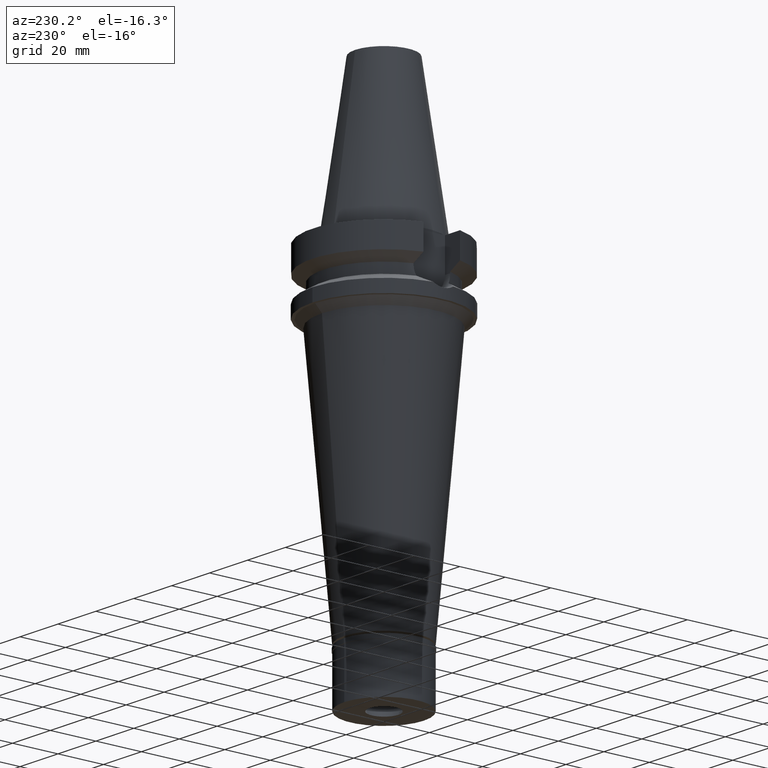
[diagram: clean part render]
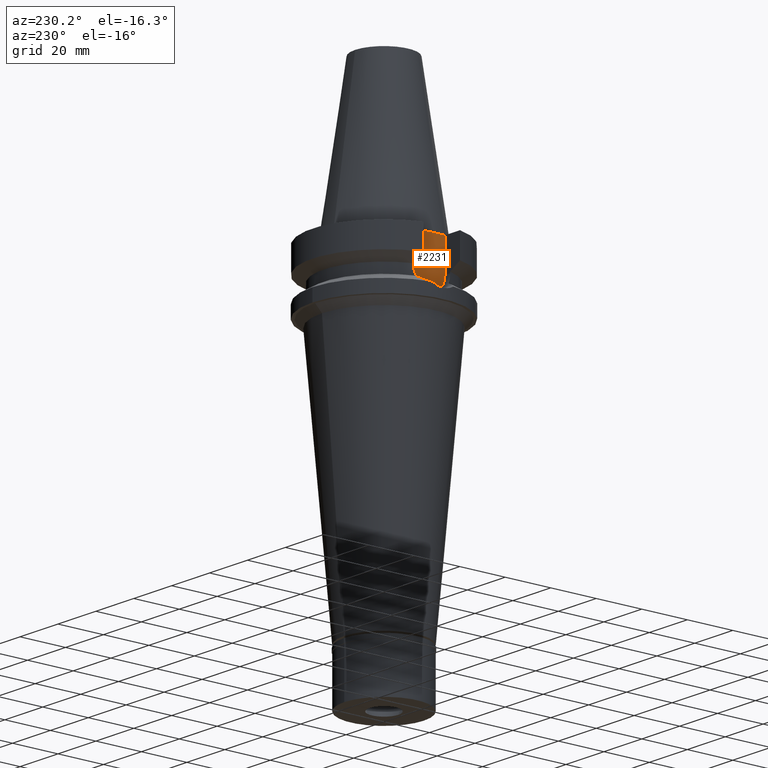
[diagram: same view with one face highlighted and labeled with its STEP entity id]
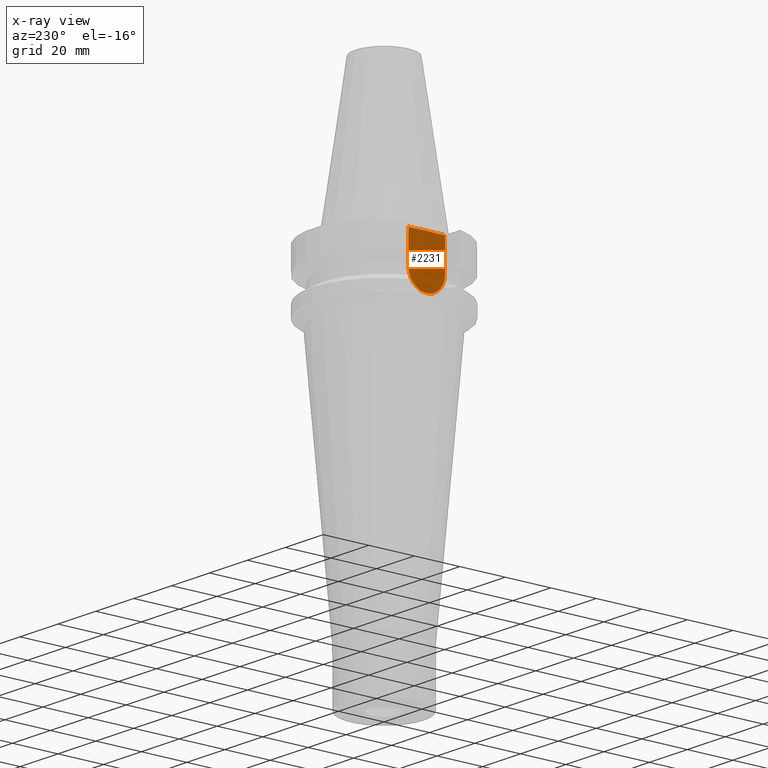
[diagram: x-ray of the same camera — body ghosted, the highlighted face saturated]
A machine part, auxiliary view. The second image highlights one B-rep face of the part: STEP entity #2231.
The next image is the same camera in x-ray: the body ghosted, the highlighted face saturated — about 0% of this face is hidden behind the body in this view.
In plain terms, the highlighted planar face has unit normal (-1, 0, 0).
Its self-contained STEP definition (entity closure, byte-faithful):
#49 = CARTESIAN_POINT ( 'NONE',  ( -22.50000000000000000, 2.173748068486999793E-14, 0.0000000000000000000 ) ) ;
#101 = CARTESIAN_POINT ( 'NONE',  ( -22.50000000000000000, -8.050000000000000711, -1.000000000000000000 ) ) ;
#325 = FACE_OUTER_BOUND ( 'NONE', #1361, .T. ) ;
#378 = CARTESIAN_POINT ( 'NONE',  ( -22.50000000000000000, 8.050000000000000711, -1.000000000000000000 ) ) ;
#604 = LINE ( 'NONE', #1770, #1438 ) ;
#615 = LINE ( 'NONE', #101, #2716 ) ;
#771 = DIRECTION ( 'NONE',  ( 0.0000000000000000000, 0.0000000000000000000, 1.000000000000000000 ) ) ;
#839 = VECTOR ( 'NONE', #1842, 1000.000000000000000 ) ;
#869 = CARTESIAN_POINT ( 'NONE',  ( -22.50000000000000000, -8.050000000000000711, -1.000000000000000000 ) ) ;
#935 = VERTEX_POINT ( 'NONE', #1819 ) ;
#961 = CARTESIAN_POINT ( 'NONE',  ( -22.50000000000000000, 1.807578675540999863E-14, -14.94999999999999929 ) ) ;
#991 = VERTEX_POINT ( 'NONE', #378 ) ;
#1007 = CARTESIAN_POINT ( 'NONE',  ( -22.50000000000000000, 8.050000000000000711, -14.94999999999999929 ) ) ;
#1016 = DIRECTION ( 'NONE',  ( -1.000000000000000000, 0.0000000000000000000, 0.0000000000000000000 ) ) ;
#1188 = DIRECTION ( 'NONE',  ( 1.000000000000000000, 0.0000000000000000000, 0.0000000000000000000 ) ) ;
#1267 = EDGE_CURVE ( 'NONE', #2181, #2521, #2309, .T. ) ;
#1361 = EDGE_LOOP ( 'NONE', ( #1764, #2626, #1634, #1500 ) ) ;
#1438 = VECTOR ( 'NONE', #771, 1000.000000000000000 ) ;
#1500 = ORIENTED_EDGE ( 'NONE', *, *, #2705, .T. ) ;
#1535 = DIRECTION ( 'NONE',  ( 0.0000000000000000000, 0.0000000000000000000, 1.000000000000000000 ) ) ;
#1634 = ORIENTED_EDGE ( 'NONE', *, *, #2870, .F. ) ;
#1761 = EDGE_CURVE ( 'NONE', #2521, #991, #604, .T. ) ;
#1764 = ORIENTED_EDGE ( 'NONE', *, *, #1761, .F. ) ;
#1770 = CARTESIAN_POINT ( 'NONE',  ( -22.50000000000000000, 8.050000000000000711, -14.94999999999999929 ) ) ;
#1817 = DIRECTION ( 'NONE',  ( 0.0000000000000000000, 1.000000000000000000, 0.0000000000000000000 ) ) ;
#1819 = CARTESIAN_POINT ( 'NONE',  ( -22.50000000000000000, -8.050000000000000711, -1.000000000000000000 ) ) ;
#1842 = DIRECTION ( 'NONE',  ( 0.0000000000000000000, 0.0000000000000000000, -1.000000000000000000 ) ) ;
#1930 = DIRECTION ( 'NONE',  ( 0.0000000000000000000, 0.0000000000000000000, -1.000000000000000000 ) ) ;
#2181 = VERTEX_POINT ( 'NONE', #2242 ) ;
#2229 = PLANE ( 'NONE',  #2810 ) ;
#2231 = ADVANCED_FACE ( 'NONE', ( #325 ), #2229, .T. ) ;
#2242 = CARTESIAN_POINT ( 'NONE',  ( -22.50000000000000000, -8.050000000000000711, -14.94999999999999929 ) ) ;
#2309 = CIRCLE ( 'NONE', #2405, 8.050000000000000711 ) ;
#2405 = AXIS2_PLACEMENT_3D ( 'NONE', #961, #1188, #1930 ) ;
#2521 = VERTEX_POINT ( 'NONE', #1007 ) ;
#2626 = ORIENTED_EDGE ( 'NONE', *, *, #1267, .F. ) ;
#2705 = EDGE_CURVE ( 'NONE', #935, #991, #615, .T. ) ;
#2716 = VECTOR ( 'NONE', #1817, 1000.000000000000000 ) ;
#2810 = AXIS2_PLACEMENT_3D ( 'NONE', #49, #1016, #1535 ) ;
#2870 = EDGE_CURVE ( 'NONE', #935, #2181, #3070, .T. ) ;
#3070 = LINE ( 'NONE', #869, #839 ) ;